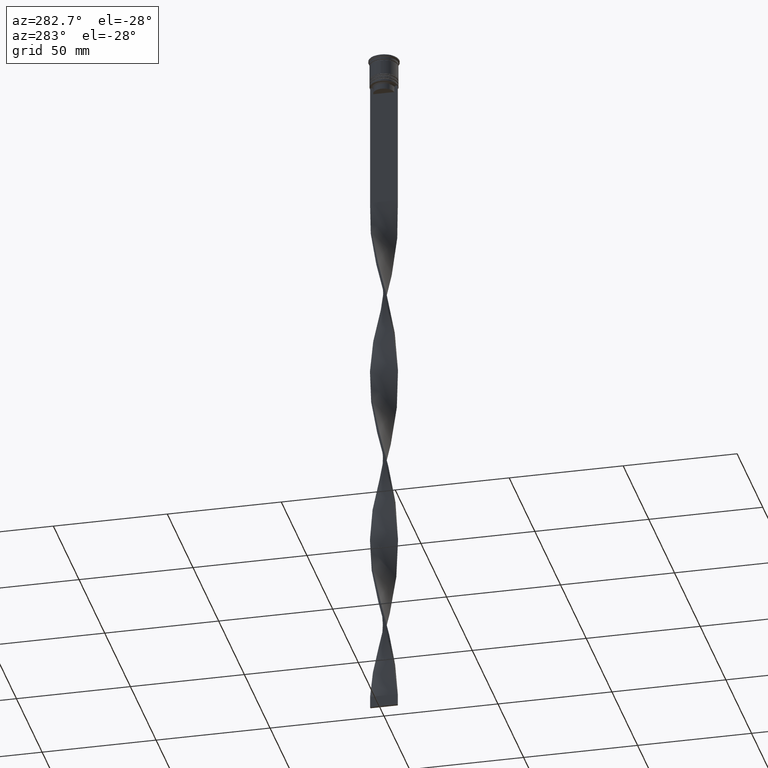
[diagram: clean part render]
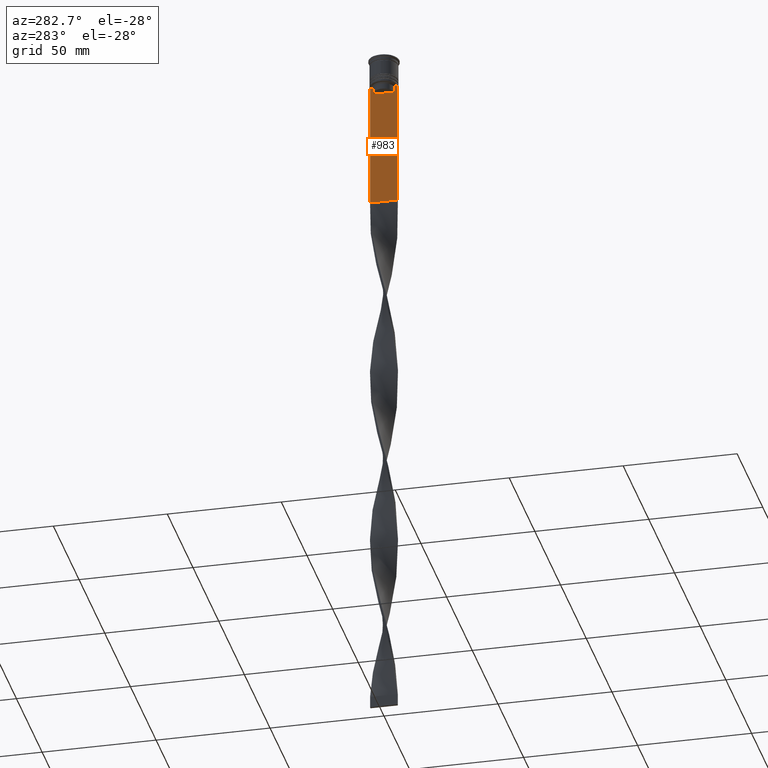
[diagram: same view with one face highlighted and labeled with its STEP entity id]
A machine part, auxiliary view. The second image highlights one B-rep face of the part: STEP entity #983.
In plain terms, the highlighted planar face has unit normal (-1, 0, 0).
Its self-contained STEP definition (entity closure, byte-faithful):
#129 = VERTEX_POINT ( 'NONE', #839 ) ;
#140 = ORIENTED_EDGE ( 'NONE', *, *, #1911, .F. ) ;
#156 = EDGE_CURVE ( 'NONE', #3671, #934, #468, .T. ) ;
#203 = VERTEX_POINT ( 'NONE', #1458 ) ;
#254 = CARTESIAN_POINT ( 'NONE',  ( -0.4999999999999997780, 5.125670687822231564, -12.50000000000000000 ) ) ;
#272 = CARTESIAN_POINT ( 'NONE',  ( -0.4999999999999997780, 4.958169823806762189, -12.66670956677067750 ) ) ;
#303 = EDGE_CURVE ( 'NONE', #1125, #3671, #2167, .T. ) ;
#326 = LINE ( 'NONE', #1292, #1337 ) ;
#396 = ORIENTED_EDGE ( 'NONE', *, *, #1069, .F. ) ;
#435 = VECTOR ( 'NONE', #676, 1000.000000000000000 ) ;
#440 = B_SPLINE_CURVE_WITH_KNOTS ( 'NONE', 3,
 ( #3440, #3985, #667, #2203 ),
 .UNSPECIFIED., .F., .F.,
 ( 4, 4 ),
 ( 0.02203698174624551046, 0.02275222543365894301 ),
 .UNSPECIFIED. ) ;
#445 = ORIENTED_EDGE ( 'NONE', *, *, #2704, .F. ) ;
#468 = LINE ( 'NONE', #1128, #2847 ) ;
#477 = EDGE_CURVE ( 'NONE', #881, #129, #326, .T. ) ;
#522 = DIRECTION ( 'NONE',  ( -1.000000000000000000, 0.000000000000000000, 0.000000000000000000 ) ) ;
#575 = AXIS2_PLACEMENT_3D ( 'NONE', #3940, #522, #2712 ) ;
#577 = VECTOR ( 'NONE', #2868, 1000.000000000000000 ) ;
#626 = ORIENTED_EDGE ( 'NONE', *, *, #1261, .F. ) ;
#667 = CARTESIAN_POINT ( 'NONE',  ( -0.4999999999999997780, -4.958169719475986170, -12.66670967060858111 ) ) ;
#676 = DIRECTION ( 'NONE',  ( 0.000000000000000000, -1.000000000000000000, 0.000000000000000000 ) ) ;
#706 = ORIENTED_EDGE ( 'NONE', *, *, #1213, .F. ) ;
#731 = LINE ( 'NONE', #1013, #2659 ) ;
#839 = CARTESIAN_POINT ( 'NONE',  ( -0.4999999999999997780, 6.000000000000000888, -68.00000000000000000 ) ) ;
#881 = VERTEX_POINT ( 'NONE', #1768 ) ;
#934 = VERTEX_POINT ( 'NONE', #3896 ) ;
#942 = CARTESIAN_POINT ( 'NONE',  ( -0.4999999999999997780, 4.790630915080666519, -12.83338087185995313 ) ) ;
#957 = CARTESIAN_POINT ( 'NONE',  ( -0.4999999999999997780, -6.000000000000000000, -12.50000000000000000 ) ) ;
#983 = ADVANCED_FACE ( 'NONE', ( #3597 ), #2998, .T. ) ;
#1013 = CARTESIAN_POINT ( 'NONE',  ( -0.4999999999999997780, -6.000000000000000000, -12.50000000000000000 ) ) ;
#1034 = CARTESIAN_POINT ( 'NONE',  ( -0.4999999999999997780, -6.000000000000000000, -12.50000000000000000 ) ) ;
#1069 = EDGE_CURVE ( 'NONE', #3818, #2457, #440, .T. ) ;
#1099 = CARTESIAN_POINT ( 'NONE',  ( -0.4999999999999997780, 4.623040125285526436, -13.00000000000000178 ) ) ;
#1125 = VERTEX_POINT ( 'NONE', #3803 ) ;
#1128 = CARTESIAN_POINT ( 'NONE',  ( -0.4999999999999997780, 4.623040125285526436, 0.000000000000000000 ) ) ;
#1213 = EDGE_CURVE ( 'NONE', #934, #203, #2918, .T. ) ;
#1261 = EDGE_CURVE ( 'NONE', #881, #1125, #731, .T. ) ;
#1275 = DIRECTION ( 'NONE',  ( 0.000000000000000000, 0.000000000000000000, -1.000000000000000000 ) ) ;
#1288 = CARTESIAN_POINT ( 'NONE',  ( -0.4999999999999997780, -6.000000000000000000, -68.00000000000000000 ) ) ;
#1292 = CARTESIAN_POINT ( 'NONE',  ( -0.4999999999999997780, 6.000000000000000888, -0.4584054212077061097 ) ) ;
#1337 = VECTOR ( 'NONE', #1275, 1000.000000000000000 ) ;
#1410 = ORIENTED_EDGE ( 'NONE', *, *, #3196, .F. ) ;
#1458 = CARTESIAN_POINT ( 'NONE',  ( -0.4999999999999997780, -4.623040125285526436, -15.50000000000000000 ) ) ;
#1676 = CARTESIAN_POINT ( 'NONE',  ( -0.4999999999999997780, -6.000000000000000000, -0.4584054212077061097 ) ) ;
#1768 = CARTESIAN_POINT ( 'NONE',  ( -0.4999999999999997780, 6.000000000000001776, -12.50000000000000000 ) ) ;
#1825 = VECTOR ( 'NONE', #3126, 1000.000000000000000 ) ;
#1911 = EDGE_CURVE ( 'NONE', #2457, #2094, #2858, .T. ) ;
#2048 = ORIENTED_EDGE ( 'NONE', *, *, #2381, .F. ) ;
#2094 = VERTEX_POINT ( 'NONE', #1034 ) ;
#2167 = B_SPLINE_CURVE_WITH_KNOTS ( 'NONE', 3,
 ( #254, #272, #942, #3995 ),
 .UNSPECIFIED., .F., .F.,
 ( 4, 4 ),
 ( 0.008759809102772707357, 0.009468778395565351919 ),
 .UNSPECIFIED. ) ;
#2203 = CARTESIAN_POINT ( 'NONE',  ( -0.4999999999999997780, -5.125670687822231564, -12.50000000000000000 ) ) ;
#2209 = CARTESIAN_POINT ( 'NONE',  ( -0.4999999999999997780, -4.623040125285526436, -13.00000000000000178 ) ) ;
#2256 = LINE ( 'NONE', #1676, #577 ) ;
#2381 = EDGE_CURVE ( 'NONE', #3570, #129, #2492, .T. ) ;
#2457 = VERTEX_POINT ( 'NONE', #2798 ) ;
#2492 = LINE ( 'NONE', #3144, #1825 ) ;
#2566 = EDGE_LOOP ( 'NONE', ( #3579, #626, #3508, #2048, #1410, #140, #396, #445, #706, #2757 ) ) ;
#2605 = DIRECTION ( 'NONE',  ( -0.000000000000000000, -0.000000000000000000, 1.000000000000000000 ) ) ;
#2623 = CARTESIAN_POINT ( 'NONE',  ( -0.4999999999999997780, -4.623040125285526436, 0.000000000000000000 ) ) ;
#2659 = VECTOR ( 'NONE', #3486, 1000.000000000000000 ) ;
#2704 = EDGE_CURVE ( 'NONE', #203, #3818, #3173, .T. ) ;
#2712 = DIRECTION ( 'NONE',  ( 0.000000000000000000, 0.000000000000000000, 1.000000000000000000 ) ) ;
#2757 = ORIENTED_EDGE ( 'NONE', *, *, #156, .F. ) ;
#2798 = CARTESIAN_POINT ( 'NONE',  ( -0.4999999999999997780, -5.125670687822231564, -12.50000000000000000 ) ) ;
#2847 = VECTOR ( 'NONE', #3309, 1000.000000000000000 ) ;
#2858 = LINE ( 'NONE', #957, #3130 ) ;
#2868 = DIRECTION ( 'NONE',  ( 0.000000000000000000, 0.000000000000000000, -1.000000000000000000 ) ) ;
#2918 = LINE ( 'NONE', #3166, #435 ) ;
#2998 = PLANE ( 'NONE',  #575 ) ;
#3126 = DIRECTION ( 'NONE',  ( 0.000000000000000000, 1.000000000000000000, 0.000000000000000000 ) ) ;
#3130 = VECTOR ( 'NONE', #3148, 1000.000000000000000 ) ;
#3144 = CARTESIAN_POINT ( 'NONE',  ( -0.4999999999999997780, -6.000000000000000000, -68.00000000000000000 ) ) ;
#3148 = DIRECTION ( 'NONE',  ( 0.000000000000000000, -1.000000000000000000, 0.000000000000000000 ) ) ;
#3166 = CARTESIAN_POINT ( 'NONE',  ( -0.4999999999999997780, 4.650000000000001243, -15.50000000000000000 ) ) ;
#3173 = LINE ( 'NONE', #2623, #3951 ) ;
#3196 = EDGE_CURVE ( 'NONE', #2094, #3570, #2256, .T. ) ;
#3309 = DIRECTION ( 'NONE',  ( 0.000000000000000000, 0.000000000000000000, -1.000000000000000000 ) ) ;
#3440 = CARTESIAN_POINT ( 'NONE',  ( -0.4999999999999997780, -4.623040125285526436, -13.00000000000000178 ) ) ;
#3486 = DIRECTION ( 'NONE',  ( 0.000000000000000000, -1.000000000000000000, 0.000000000000000000 ) ) ;
#3508 = ORIENTED_EDGE ( 'NONE', *, *, #477, .T. ) ;
#3570 = VERTEX_POINT ( 'NONE', #1288 ) ;
#3579 = ORIENTED_EDGE ( 'NONE', *, *, #303, .F. ) ;
#3597 = FACE_OUTER_BOUND ( 'NONE', #2566, .T. ) ;
#3671 = VERTEX_POINT ( 'NONE', #1099 ) ;
#3803 = CARTESIAN_POINT ( 'NONE',  ( -0.4999999999999997780, 5.125670687822231564, -12.50000000000000000 ) ) ;
#3818 = VERTEX_POINT ( 'NONE', #2209 ) ;
#3896 = CARTESIAN_POINT ( 'NONE',  ( -0.4999999999999997780, 4.623040125285526436, -15.50000000000000000 ) ) ;
#3940 = CARTESIAN_POINT ( 'NONE',  ( -0.4999999999999997780, -6.000000000000000000, -0.4584054212077061097 ) ) ;
#3951 = VECTOR ( 'NONE', #2605, 1000.000000000000000 ) ;
#3985 = CARTESIAN_POINT ( 'NONE',  ( -0.4999999999999997780, -4.790630799407576745, -12.83338098686239093 ) ) ;
#3995 = CARTESIAN_POINT ( 'NONE',  ( -0.4999999999999997780, 4.623040125285526436, -13.00000000000000178 ) ) ;